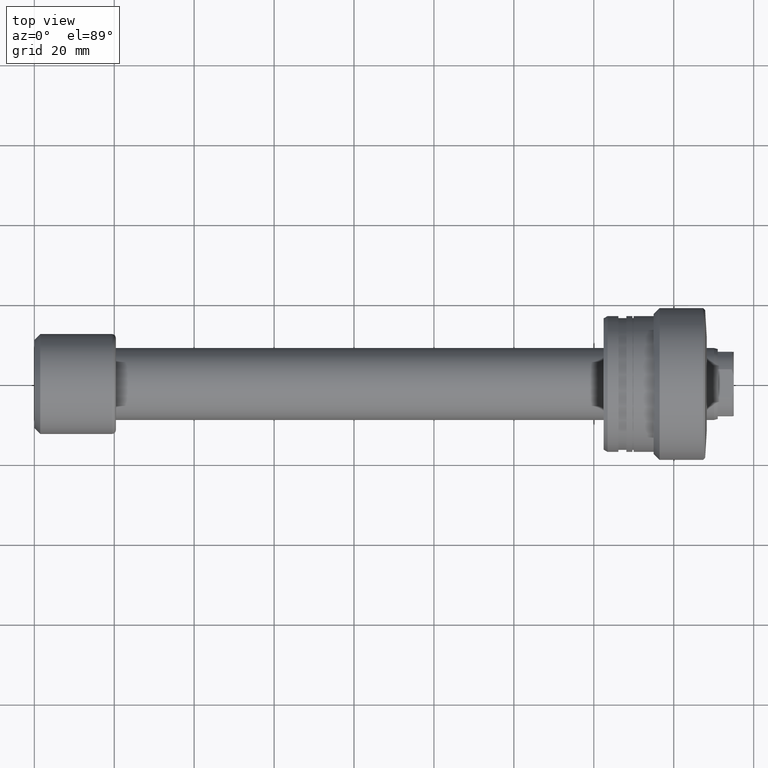
[diagram: clean part render]
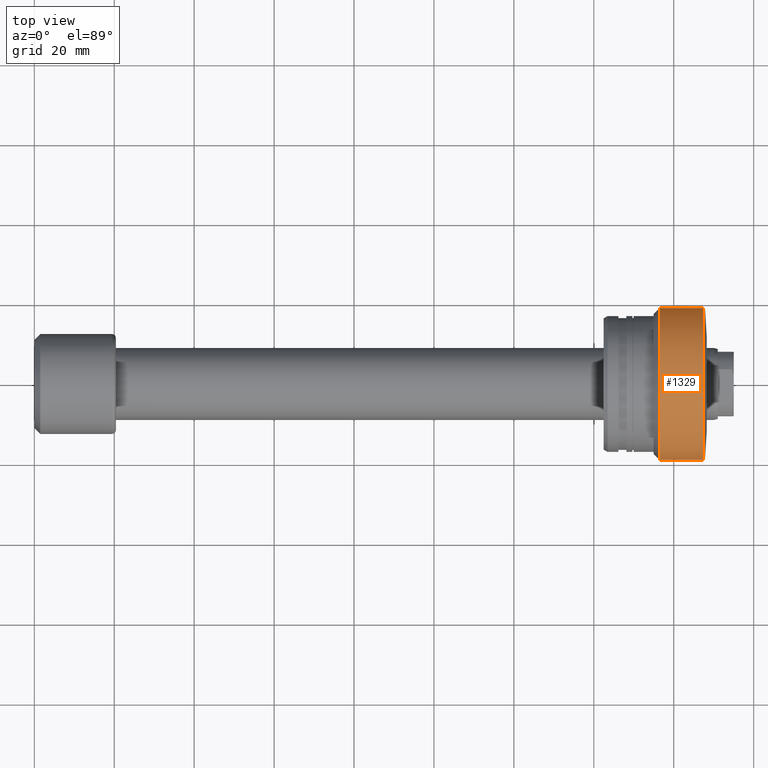
[diagram: same view with one face highlighted and labeled with its STEP entity id]
A machine part, top view. The second image highlights one B-rep face of the part: STEP entity #1329.
In plain terms, the highlighted cylindrical surface (partial cylindrical patch) has radius 19 mm, axis along (-1, 0, 0).
Its self-contained STEP definition (entity closure, byte-faithful):
#20 = EDGE_LOOP ( 'NONE', ( #1825, #1029, #141, #1429 ) ) ;
#23 = LINE ( 'NONE', #386, #601 ) ;
#37 = FACE_OUTER_BOUND ( 'NONE', #20, .T. ) ;
#68 = DIRECTION ( 'NONE',  ( -1.000000000000000000, 9.810081908519753690E-16, -0.000000000000000000 ) ) ;
#141 = ORIENTED_EDGE ( 'NONE', *, *, #274, .F. ) ;
#174 = DIRECTION ( 'NONE',  ( -1.000000000000000000, 9.810081908519753690E-16, -0.000000000000000000 ) ) ;
#274 = EDGE_CURVE ( 'NONE', #1276, #715, #1369, .T. ) ;
#369 = DIRECTION ( 'NONE',  ( -1.004313591354994318E-15, -1.000000000000000000, 0.000000000000000000 ) ) ;
#380 = CARTESIAN_POINT ( 'NONE',  ( -12.50000000000066613, -1.744234796788965300E-14, 0.000000000000000000 ) ) ;
#386 = CARTESIAN_POINT ( 'NONE',  ( -30.28002276692730632, 18.99999999999998224, 2.326828918379968998E-15 ) ) ;
#408 = CIRCLE ( 'NONE', #2306, 18.99999999999997513 ) ;
#474 = AXIS2_PLACEMENT_3D ( 'NONE', #380, #727, #369 ) ;
#601 = VECTOR ( 'NONE', #936, 1000.000000000000000 ) ;
#715 = VERTEX_POINT ( 'NONE', #1265 ) ;
#727 = DIRECTION ( 'NONE',  ( -1.000000000000000000, 9.810081908519753690E-16, -0.000000000000000000 ) ) ;
#745 = DIRECTION ( 'NONE',  ( -1.000000000000000000, 9.810081908519753690E-16, -0.000000000000000000 ) ) ;
#767 = AXIS2_PLACEMENT_3D ( 'NONE', #1092, #174, #2442 ) ;
#795 = CYLINDRICAL_SURFACE ( 'NONE', #767, 18.99999999999998224 ) ;
#871 = VERTEX_POINT ( 'NONE', #1076 ) ;
#936 = DIRECTION ( 'NONE',  ( -1.000000000000000000, 9.810081908519753690E-16, -0.000000000000000000 ) ) ;
#1029 = ORIENTED_EDGE ( 'NONE', *, *, #2114, .T. ) ;
#1076 = CARTESIAN_POINT ( 'NONE',  ( -1.600000000000662004, 18.99999999999994671, 2.326828918379968604E-15 ) ) ;
#1092 = CARTESIAN_POINT ( 'NONE',  ( -30.28002276692732408, 0.000000000000000000, 0.000000000000000000 ) ) ;
#1188 = EDGE_CURVE ( 'NONE', #1766, #1276, #1275, .T. ) ;
#1265 = CARTESIAN_POINT ( 'NONE',  ( -12.50000000000064837, 18.99999999999996447, 0.000000000000000000 ) ) ;
#1275 = LINE ( 'NONE', #1316, #1447 ) ;
#1276 = VERTEX_POINT ( 'NONE', #2430 ) ;
#1316 = CARTESIAN_POINT ( 'NONE',  ( -30.28002276692734185, -18.99999999999998224, 0.000000000000000000 ) ) ;
#1329 = ADVANCED_FACE ( 'NONE', ( #37 ), #795, .T. ) ;
#1358 = CARTESIAN_POINT ( 'NONE',  ( -1.600000000000680656, -2.813533724817616843E-14, 0.000000000000000000 ) ) ;
#1369 = CIRCLE ( 'NONE', #474, 18.99999999999998579 ) ;
#1429 = ORIENTED_EDGE ( 'NONE', *, *, #1188, .F. ) ;
#1447 = VECTOR ( 'NONE', #745, 1000.000000000000000 ) ;
#1552 = CARTESIAN_POINT ( 'NONE',  ( -1.600000000000699307, -19.00000000000000355, 0.000000000000000000 ) ) ;
#1704 = DIRECTION ( 'NONE',  ( -9.814882824605632788E-16, -1.000000000000000000, 0.000000000000000000 ) ) ;
#1766 = VERTEX_POINT ( 'NONE', #1552 ) ;
#1825 = ORIENTED_EDGE ( 'NONE', *, *, #2384, .T. ) ;
#2114 = EDGE_CURVE ( 'NONE', #871, #715, #23, .T. ) ;
#2306 = AXIS2_PLACEMENT_3D ( 'NONE', #1358, #68, #1704 ) ;
#2384 = EDGE_CURVE ( 'NONE', #1766, #871, #408, .T. ) ;
#2430 = CARTESIAN_POINT ( 'NONE',  ( -12.50000000000068567, -19.00000000000000711, 2.326828918379969393E-15 ) ) ;
#2442 = DIRECTION ( 'NONE',  ( -9.130123557772677948E-16, -1.000000000000000000, 0.000000000000000000 ) ) ;